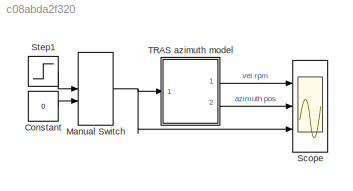
MODEL slx_c08abda2f320
KIND model
CONFIG PreLoadFcn = load tras_char
BLOCK [Constant] Constant
  Value = 0
BLOCK [ManualSwitch] Manual Switch
BLOCK [Scope] Scope
  DataFormat = StructureWithTime
  Floating = off
  NumInputPorts = 3
  Ports = [3]
  SampleTime = 0
  ShowLegends = off
  YMax = 5~5~5
  YMin = -5~-5~-5
BLOCK [Step] Step1
  After = .2
  SampleTime = 0
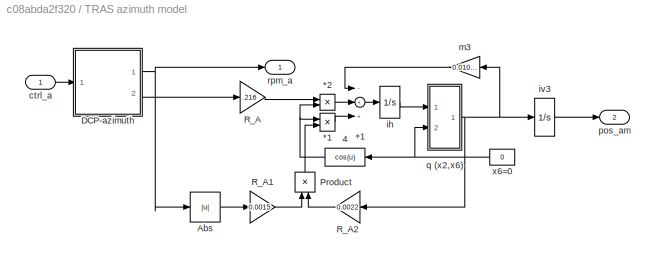
BLOCK [SubSystem] TRAS azimuth model
  FunctionWithSeparateData = off
  MaskHideContents = off
  MinAlgLoopOccurrences = off
  Opaque = off
  Ports = [1, 2]
  PropExecContextOutsideSubsystem = off
  RTWSystemCode = Auto
  RequestExecContextInheritance = off
BLOCK [Product] TRAS azimuth model/*1
  Ports = [2, 1]
  RndMeth = Floor
BLOCK [Product] TRAS azimuth model/*2
  Ports = [2, 1]
  RndMeth = Floor
BLOCK [Sum] TRAS azimuth model/+1
  Inputs = -++
  Ports = [3, 1]
BLOCK [Fcn] TRAS azimuth model/4
  Expr = cos(u)
BLOCK [Abs] TRAS azimuth model/Abs
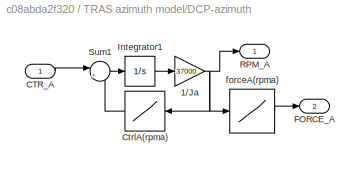
BLOCK [SubSystem] TRAS azimuth model/DCP-azimuth
  FunctionWithSeparateData = off
  MaskHideContents = off
  MinAlgLoopOccurrences = off
  Opaque = off
  Ports = [1, 2]
  PropExecContextOutsideSubsystem = off
  RTWSystemCode = Auto
  RequestExecContextInheritance = off
BLOCK [Gain] TRAS azimuth model/DCP-azimuth/1//Ja
  Gain = 37000
BLOCK [Inport] TRAS azimuth model/DCP-azimuth/CTR_A
  IconDisplay = Port number
BLOCK [Lookup] TRAS azimuth model/DCP-azimuth/CtrlA(rpma)
  InputValues = rpm_a
  Table = control_a
BLOCK [Outport] TRAS azimuth model/DCP-azimuth/FORCE_A
  IconDisplay = Port number
  Port = 2
BLOCK [Integrator] TRAS azimuth model/DCP-azimuth/Integrator1
  Ports = [1, 1]
BLOCK [Outport] TRAS azimuth model/DCP-azimuth/RPM_A
  IconDisplay = Port number
BLOCK [Sum] TRAS azimuth model/DCP-azimuth/Sum1
  IconShape = round
  Inputs = |+-
  Ports = [2, 1]
BLOCK [Lookup] TRAS azimuth model/DCP-azimuth/forceA(rpma)
  InputValues = rpm_a
  Table = force_a
BLOCK [Product] TRAS azimuth model/Product
  Ports = [2, 1]
  RndMeth = Floor
BLOCK [Gain] TRAS azimuth model/R_A
  Gain = .216
  SaturateOnIntegerOverflow = off
BLOCK [Gain] TRAS azimuth model/R_A1
  Gain = 0.0015
  SaturateOnIntegerOverflow = off
BLOCK [Gain] TRAS azimuth model/R_A2
  Gain = 0.0022
  SaturateOnIntegerOverflow = off
BLOCK [Inport] TRAS azimuth model/ctrl_a 
  IconDisplay = Port number
BLOCK [Integrator] TRAS azimuth model/ih
  Ports = [1, 1]
BLOCK [Integrator] TRAS azimuth model/iv3
  Ports = [1, 1]
BLOCK [Gain] TRAS azimuth model/m3
  Gain = 0.0108*0.4935*1.1051
  SaturateOnIntegerOverflow = off
BLOCK [Outport] TRAS azimuth model/pos_am
  IconDisplay = Port number
  Port = 2
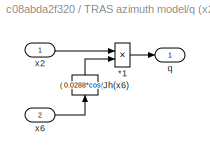
BLOCK [SubSystem] TRAS azimuth model/q (x2,x6)
  FunctionWithSeparateData = off
  MaskHideContents = off
  MinAlgLoopOccurrences = off
  Opaque = off
  Ports = [2, 1]
  PropExecContextOutsideSubsystem = off
  RTWSystemCode = Auto
  RequestExecContextInheritance = off
BLOCK [Fcn] TRAS azimuth model/q (x2,x6)/ Jh(x6)
  Expr = ( 0.0288*cos(u)^2*0.8696)*1.0713  +0
BLOCK [Product] TRAS azimuth model/q (x2,x6)/*1
  Inputs = */
  Ports = [2, 1]
  RndMeth = Floor
BLOCK [Outport] TRAS azimuth model/q (x2,x6)/q
  IconDisplay = Port number
BLOCK [Inport] TRAS azimuth model/q (x2,x6)/x2
  IconDisplay = Port number
BLOCK [Inport] TRAS azimuth model/q (x2,x6)/x6
  IconDisplay = Port number
  Port = 2
BLOCK [Outport] TRAS azimuth model/rpm_a
  IconDisplay = Port number
BLOCK [Constant] TRAS azimuth model/x6=0
  Value = 0
LINE Constant:1 -> Manual Switch:2
NET Manual Switch:1 -> Scope:3, TRAS azimuth model:1
LINE Step1:1 -> Manual Switch:1
LINE TRAS azimuth model/*1:1 -> TRAS azimuth model/+1:3
LINE TRAS azimuth model/*2:1 -> TRAS azimuth model/+1:2
LINE TRAS azimuth model/+1:1 -> TRAS azimuth model/ih:1
NET TRAS azimuth model/4:1 -> TRAS azimuth model/*1:1, TRAS azimuth model/*2:2
LINE TRAS azimuth model/Abs:1 -> TRAS azimuth model/R_A1:1
NET TRAS azimuth model/DCP-azimuth/1//Ja:1 -> TRAS azimuth model/DCP-azimuth/CtrlA(rpma):1, TRAS azimuth model/DCP-azimuth/RPM_A:1, TRAS azimuth model/DCP-azimuth/forceA(rpma):1
LINE TRAS azimuth model/DCP-azimuth/CTR_A:1 -> TRAS azimuth model/DCP-azimuth/Sum1:1
LINE TRAS azimuth model/DCP-azimuth/CtrlA(rpma):1 -> TRAS azimuth model/DCP-azimuth/Sum1:2
LINE TRAS azimuth model/DCP-azimuth/Integrator1:1 -> TRAS azimuth model/DCP-azimuth/1//Ja:1
LINE TRAS azimuth model/DCP-azimuth/Sum1:1 -> TRAS azimuth model/DCP-azimuth/Integrator1:1
LINE TRAS azimuth model/DCP-azimuth/forceA(rpma):1 -> TRAS azimuth model/DCP-azimuth/FORCE_A:1
NET TRAS azimuth model/DCP-azimuth:1 -> TRAS azimuth model/Abs:1, TRAS azimuth model/rpm_a:1
LINE TRAS azimuth model/DCP-azimuth:2 -> TRAS azimuth model/R_A:1
LINE TRAS azimuth model/Product:1 -> TRAS azimuth model/*1:2
LINE TRAS azimuth model/R_A1:1 -> TRAS azimuth model/Product:1
LINE TRAS azimuth model/R_A2:1 -> TRAS azimuth model/Product:2
LINE TRAS azimuth model/R_A:1 -> TRAS azimuth model/*2:1
LINE TRAS azimuth model/ctrl_a :1 -> TRAS azimuth model/DCP-azimuth:1
LINE TRAS azimuth model/ih:1 -> TRAS azimuth model/q (x2,x6):1
LINE TRAS azimuth model/iv3:1 -> TRAS azimuth model/pos_am:1
LINE TRAS azimuth model/m3:1 -> TRAS azimuth model/+1:1
LINE TRAS azimuth model/q (x2,x6)/ Jh(x6):1 -> TRAS azimuth model/q (x2,x6)/*1:2
LINE TRAS azimuth model/q (x2,x6)/*1:1 -> TRAS azimuth model/q (x2,x6)/q:1
LINE TRAS azimuth model/q (x2,x6)/x2:1 -> TRAS azimuth model/q (x2,x6)/*1:1
LINE TRAS azimuth model/q (x2,x6)/x6:1 -> TRAS azimuth model/q (x2,x6)/ Jh(x6):1
NET TRAS azimuth model/q (x2,x6):1 -> TRAS azimuth model/R_A2:1, TRAS azimuth model/iv3:1, TRAS azimuth model/m3:1
NET TRAS azimuth model/x6=0:1 -> TRAS azimuth model/4:1, TRAS azimuth model/q (x2,x6):2
LINE TRAS azimuth model:1 -> Scope:1
LINE TRAS azimuth model:2 -> Scope:2
note: NET lines group one-source signal fan-out (src -> all destinations, sorted); 1:1 wires keep LINE
